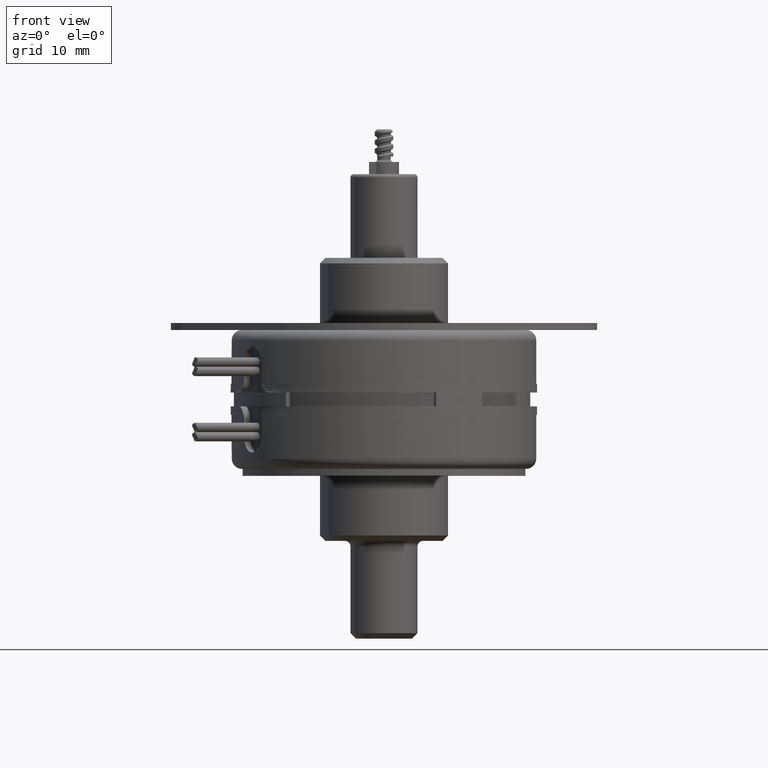
[diagram: clean part render]
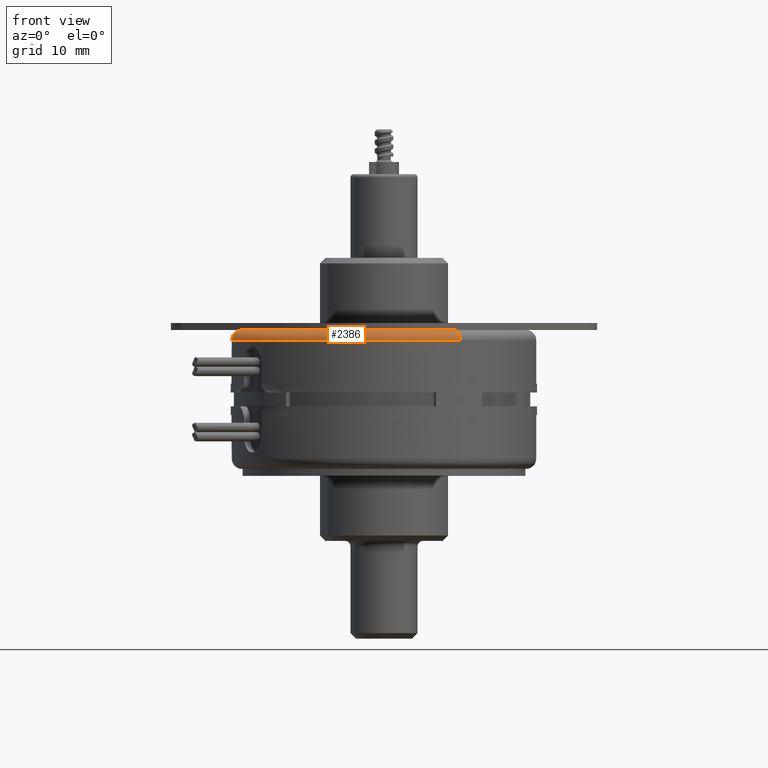
[diagram: same view with one face highlighted and labeled with its STEP entity id]
A machine part, front view. The second image highlights one B-rep face of the part: STEP entity #2386.
In plain terms, the highlighted toroidal blend (fillet) surface has major radius 16.6624 mm and minor (blend) radius 1.1938 mm.
Its self-contained STEP definition (entity closure, byte-faithful):
#1914=CARTESIAN_POINT('',(0.E0,-6.56E-1,1.5E-2));
#1915=DIRECTION('',(-1.E0,0.E0,0.E0));
#1916=DIRECTION('',(0.E0,0.E0,-1.E0));
#1917=AXIS2_PLACEMENT_3D('',#1914,#1915,#1916);
#1924=CARTESIAN_POINT('',(0.E0,6.56E-1,1.5E-2));
#1925=DIRECTION('',(1.E0,0.E0,0.E0));
#1926=DIRECTION('',(0.E0,0.E0,-1.E0));
#1927=AXIS2_PLACEMENT_3D('',#1924,#1925,#1926);
#1929=CARTESIAN_POINT('',(0.E0,0.E0,1.5E-2));
#1930=DIRECTION('',(0.E0,0.E0,1.E0));
#1931=DIRECTION('',(0.E0,1.E0,0.E0));
#1932=AXIS2_PLACEMENT_3D('',#1929,#1930,#1931);
#1934=CARTESIAN_POINT('',(0.E0,0.E0,-3.2E-2));
#1935=DIRECTION('',(0.E0,0.E0,1.E0));
#1936=DIRECTION('',(0.E0,1.E0,0.E0));
#1937=AXIS2_PLACEMENT_3D('',#1934,#1935,#1936);
#2061=CARTESIAN_POINT('',(0.E0,-7.03E-1,1.5E-2));
#2062=VERTEX_POINT('',#2061);
#2063=CARTESIAN_POINT('',(0.E0,7.03E-1,1.5E-2));
#2064=VERTEX_POINT('',#2063);
#2065=CARTESIAN_POINT('',(0.E0,6.56E-1,-3.2E-2));
#2066=VERTEX_POINT('',#2065);
#2067=CARTESIAN_POINT('',(0.E0,-6.56E-1,-3.2E-2));
#2068=VERTEX_POINT('',#2067);
#2374=CARTESIAN_POINT('',(0.E0,0.E0,1.5E-2));
#2375=DIRECTION('',(0.E0,0.E0,1.E0));
#2376=DIRECTION('',(0.E0,1.E0,0.E0));
#2377=AXIS2_PLACEMENT_3D('',#2374,#2375,#2376);
#2378=TOROIDAL_SURFACE('',#2377,6.56E-1,4.7E-2);
#2379=ORIENTED_EDGE('',*,*,#2364,.T.);
#2380=ORIENTED_EDGE('',*,*,#2336,.T.);
#2381=ORIENTED_EDGE('',*,*,#2368,.F.);
#2383=ORIENTED_EDGE('',*,*,#2382,.F.);
#2384=EDGE_LOOP('',(#2379,#2380,#2381,#2383));
#2385=FACE_OUTER_BOUND('',#2384,.F.);
#2386=ADVANCED_FACE('',(#2385),#2378,.T.);
#1918=CIRCLE('',#1917,4.7E-2);
#1928=CIRCLE('',#1927,4.7E-2);
#1933=CIRCLE('',#1932,7.03E-1);
#1938=CIRCLE('',#1937,6.56E-1);
#2336=EDGE_CURVE('',#2064,#2062,#1933,.T.);
#2364=EDGE_CURVE('',#2066,#2064,#1928,.T.);
#2368=EDGE_CURVE('',#2068,#2062,#1918,.T.);
#2382=EDGE_CURVE('',#2066,#2068,#1938,.T.);